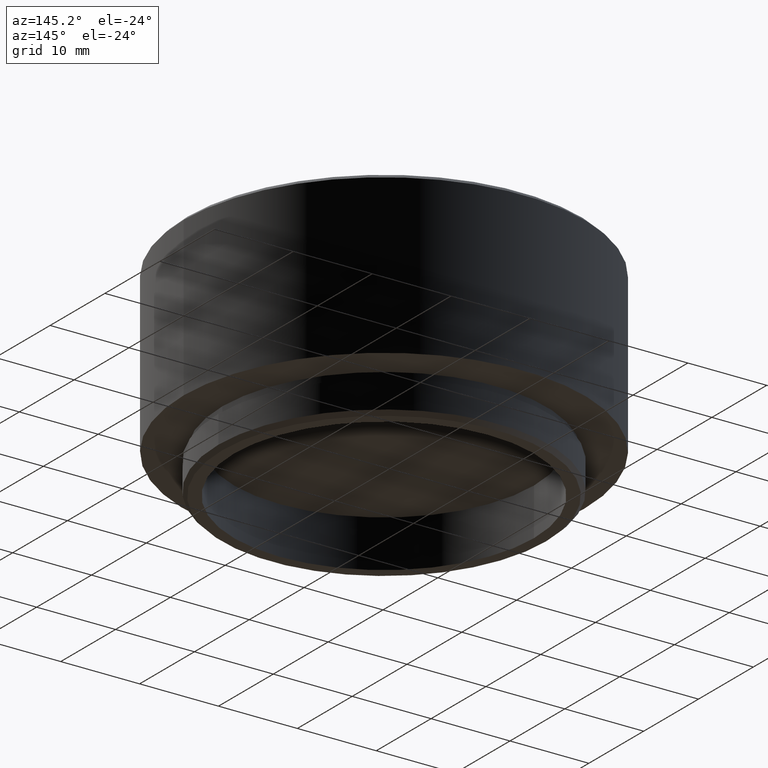
[diagram: clean part render]
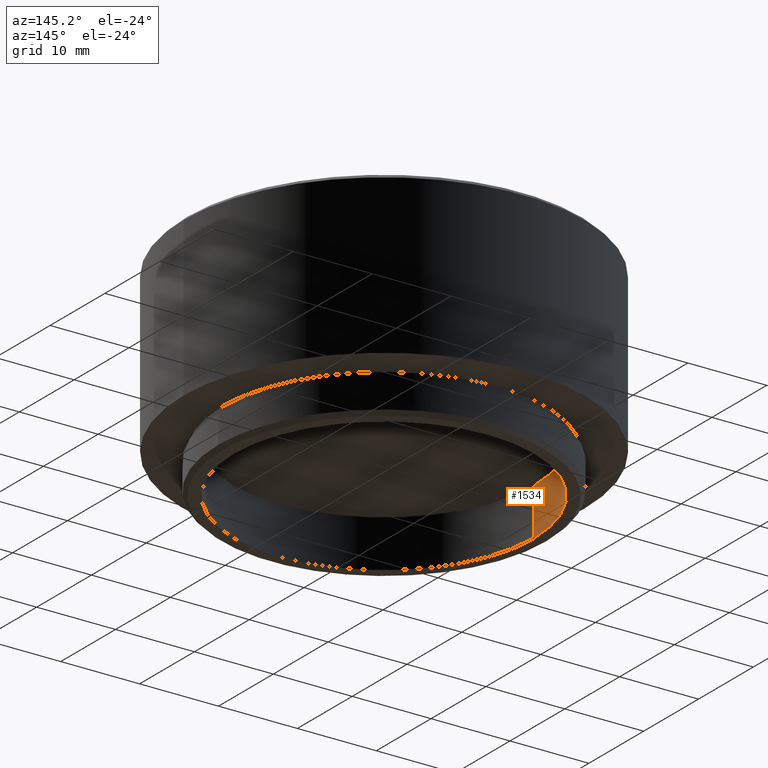
[diagram: same view with one face highlighted and labeled with its STEP entity id]
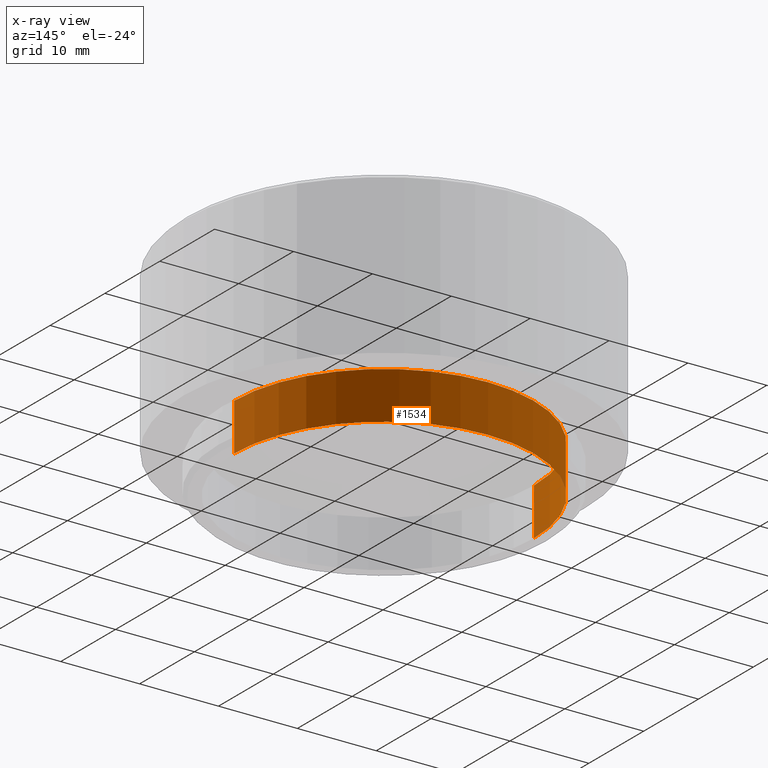
[diagram: x-ray of the same camera — body ghosted, the highlighted face saturated]
A machine part, auxiliary view. The second image highlights one B-rep face of the part: STEP entity #1534.
The next image is the same camera in x-ray: the body ghosted, the highlighted face saturated — about 0% of this face is hidden behind the body in this view.
In plain terms, the highlighted cylindrical surface (partial cylindrical patch) has radius 19 mm, axis along (-0, -0, -1).
Its self-contained STEP definition (entity closure, byte-faithful):
#112 = CARTESIAN_POINT ( 'NONE',  ( -19.00000000000000000, 0.000000000000000000, 25.50000000000000000 ) ) ;
#115 = VECTOR ( 'NONE', #1079, 1000.000000000000000 ) ;
#154 = EDGE_CURVE ( 'NONE', #441, #1597, #894, .T. ) ;
#160 = FACE_OUTER_BOUND ( 'NONE', #677, .T. ) ;
#274 = CARTESIAN_POINT ( 'NONE',  ( 19.00000000000000000, 2.326828918379970970E-15, 5.999999999999998224 ) ) ;
#288 = CARTESIAN_POINT ( 'NONE',  ( 0.000000000000000000, 0.000000000000000000, 0.000000000000000000 ) ) ;
#299 = CYLINDRICAL_SURFACE ( 'NONE', #1083, 19.00000000000000000 ) ;
#372 = VERTEX_POINT ( 'NONE', #274 ) ;
#399 = EDGE_CURVE ( 'NONE', #1070, #1597, #911, .T. ) ;
#409 = ORIENTED_EDGE ( 'NONE', *, *, #154, .F. ) ;
#416 = LINE ( 'NONE', #1210, #115 ) ;
#441 = VERTEX_POINT ( 'NONE', #1583 ) ;
#553 = CIRCLE ( 'NONE', #1458, 19.00000000000000000 ) ;
#568 = DIRECTION ( 'NONE',  ( 0.000000000000000000, 0.000000000000000000, 1.000000000000000000 ) ) ;
#623 = DIRECTION ( 'NONE',  ( 0.000000000000000000, 0.000000000000000000, 1.000000000000000000 ) ) ;
#647 = VECTOR ( 'NONE', #792, 1000.000000000000000 ) ;
#652 = ORIENTED_EDGE ( 'NONE', *, *, #1108, .T. ) ;
#677 = EDGE_LOOP ( 'NONE', ( #1192, #652, #1578, #409 ) ) ;
#792 = DIRECTION ( 'NONE',  ( -0.000000000000000000, -0.000000000000000000, -1.000000000000000000 ) ) ;
#894 = CIRCLE ( 'NONE', #1182, 19.00000000000000000 ) ;
#911 = LINE ( 'NONE', #112, #647 ) ;
#1070 = VERTEX_POINT ( 'NONE', #1367 ) ;
#1079 = DIRECTION ( 'NONE',  ( -0.000000000000000000, -0.000000000000000000, -1.000000000000000000 ) ) ;
#1083 = AXIS2_PLACEMENT_3D ( 'NONE', #1605, #1089, #1612 ) ;
#1089 = DIRECTION ( 'NONE',  ( -0.000000000000000000, -0.000000000000000000, -1.000000000000000000 ) ) ;
#1092 = DIRECTION ( 'NONE',  ( 1.000000000000000000, 0.000000000000000000, 0.000000000000000000 ) ) ;
#1108 = EDGE_CURVE ( 'NONE', #372, #1070, #553, .T. ) ;
#1182 = AXIS2_PLACEMENT_3D ( 'NONE', #288, #568, #1092 ) ;
#1192 = ORIENTED_EDGE ( 'NONE', *, *, #1582, .F. ) ;
#1210 = CARTESIAN_POINT ( 'NONE',  ( 19.00000000000000000, 2.326828918379970970E-15, 25.50000000000000000 ) ) ;
#1367 = CARTESIAN_POINT ( 'NONE',  ( -19.00000000000000000, 0.000000000000000000, 5.999999999999998224 ) ) ;
#1406 = CARTESIAN_POINT ( 'NONE',  ( 0.000000000000000000, 0.000000000000000000, 5.999999999999998224 ) ) ;
#1458 = AXIS2_PLACEMENT_3D ( 'NONE', #1406, #623, #1544 ) ;
#1463 = CARTESIAN_POINT ( 'NONE',  ( -19.00000000000000000, 0.000000000000000000, 0.000000000000000000 ) ) ;
#1534 = ADVANCED_FACE ( 'NONE', ( #160 ), #299, .F. ) ;
#1544 = DIRECTION ( 'NONE',  ( 1.000000000000000000, 0.000000000000000000, 0.000000000000000000 ) ) ;
#1578 = ORIENTED_EDGE ( 'NONE', *, *, #399, .T. ) ;
#1582 = EDGE_CURVE ( 'NONE', #372, #441, #416, .T. ) ;
#1583 = CARTESIAN_POINT ( 'NONE',  ( 19.00000000000000000, 2.326828918379970970E-15, 0.000000000000000000 ) ) ;
#1597 = VERTEX_POINT ( 'NONE', #1463 ) ;
#1605 = CARTESIAN_POINT ( 'NONE',  ( 0.000000000000000000, 0.000000000000000000, 25.50000000000000000 ) ) ;
#1612 = DIRECTION ( 'NONE',  ( -1.000000000000000000, 0.000000000000000000, 0.000000000000000000 ) ) ;